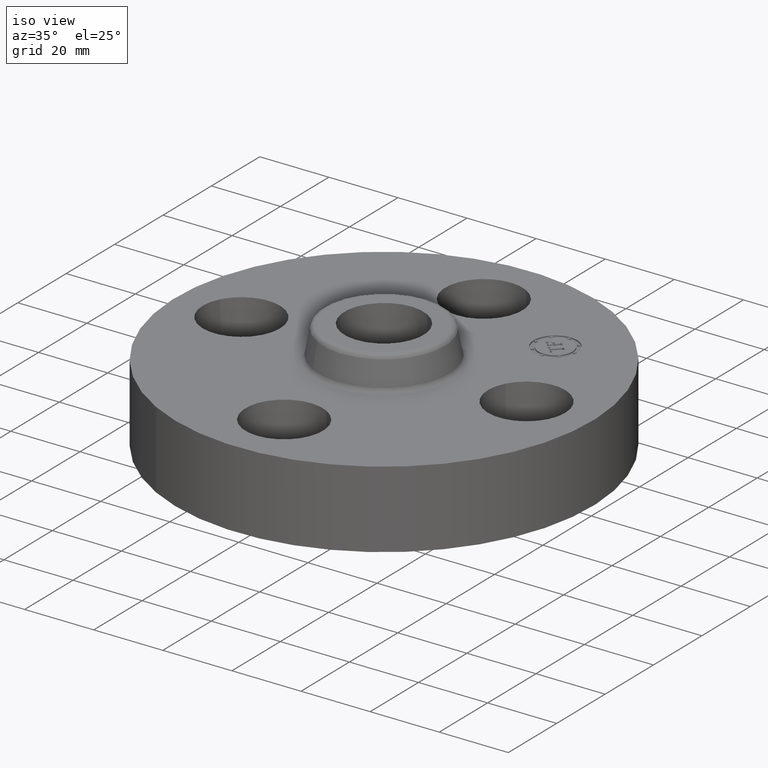
[diagram: clean part render]
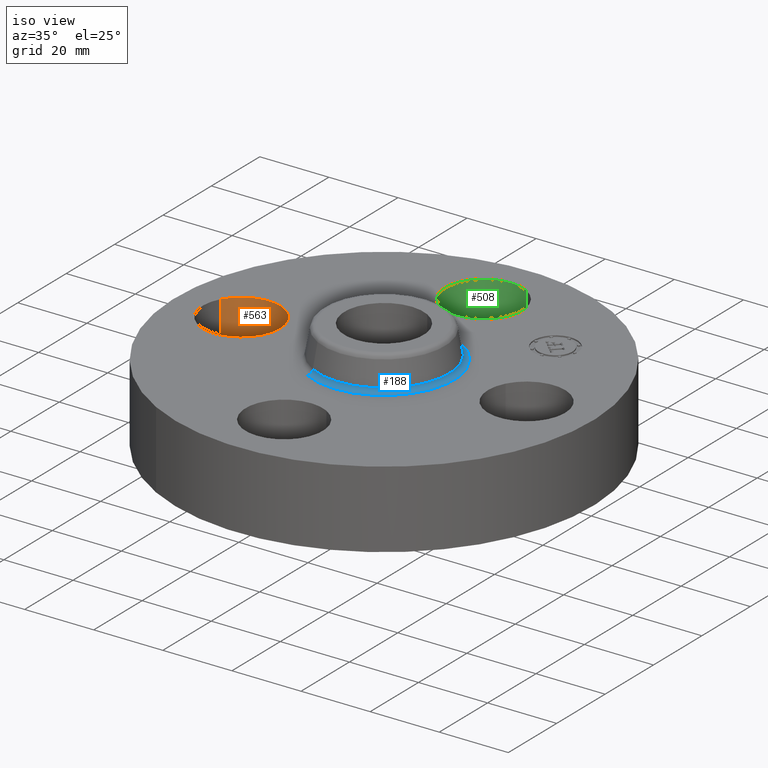
[diagram: same view with three faces highlighted in distinct colors, each labeled with its STEP entity id]
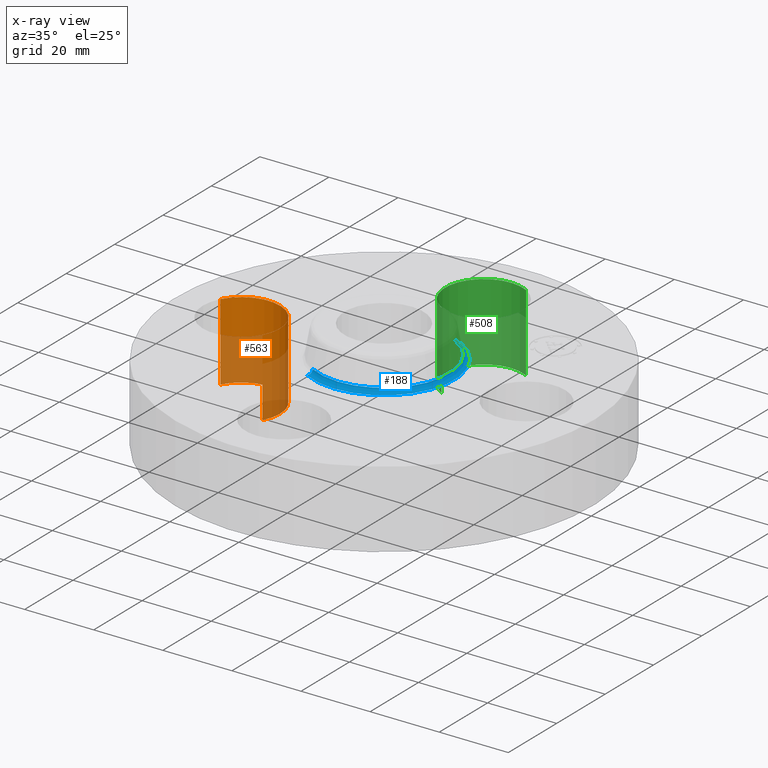
[diagram: x-ray of the same camera — body ghosted, the three highlighted faces saturated]
A machine part, iso view with three faces highlighted in distinct colors.
The next image is the same camera in x-ray (body ghosted, the three faces saturated) — at least one of them is partly hidden behind the body in this view.
Their STEP definitions:

[orange] entity #563 — the highlighted cylindrical surface (partial cylindrical patch) has radius 11.176 mm, axis along (-0, 0, -1).
#452=AXIS2_PLACEMENT_3D('Circle Axis2P3D',#450,#451,$) ;
#524=AXIS2_PLACEMENT_3D('Cylinder Axis2P3D',#521,#522,#523) ;
#554=AXIS2_PLACEMENT_3D('Circle Axis2P3D',#552,#553,$) ;
#445=CARTESIAN_POINT('Vertex',(-1.23886367277,-0.210947236987,0.)) ;
#447=CARTESIAN_POINT('Vertex',(-2.01113632724,0.210947236987,0.)) ;
#450=CARTESIAN_POINT('Axis2P3D Location',(-1.62500000001,-2.09805925913E-016,0.)) ;
#521=CARTESIAN_POINT('Axis2P3D Location',(-1.62500000001,-1.99005104862E-016,0.87606299213)) ;
#526=CARTESIAN_POINT('Line Origine',(-1.23886367277,-0.210947236987,0.440000000002)) ;
#530=CARTESIAN_POINT('Vertex',(-1.23886367277,-0.210947236987,0.880000000004)) ;
#533=CARTESIAN_POINT('Line Origine',(-2.01113632724,0.210947236987,0.440000000002)) ;
#537=CARTESIAN_POINT('Vertex',(-2.01113632724,0.210947236987,0.880000000004)) ;
#552=CARTESIAN_POINT('Axis2P3D Location',(-1.62500000001,-1.99005104862E-016,0.880000000004)) ;
#451=DIRECTION('Axis2P3D Direction',(0.,0.,-0.0393700787402)) ;
#522=DIRECTION('Axis2P3D Direction',(-0.,0.,-0.0393700787402)) ;
#523=DIRECTION('Axis2P3D XDirection',(-0.0345504945626,0.0188750212049,0.)) ;
#527=DIRECTION('Vector Direction',(0.,0.,-0.0393700787402)) ;
#534=DIRECTION('Vector Direction',(0.,0.,-0.0393700787402)) ;
#553=DIRECTION('Axis2P3D Direction',(-0.,0.,-0.0393700787402)) ;
#528=VECTOR('Line Direction',#527,0.0393700787402) ;
#535=VECTOR('Line Direction',#534,0.0393700787402) ;
#558=ORIENTED_EDGE('',*,*,#539,.F.) ;
#559=ORIENTED_EDGE('',*,*,#454,.T.) ;
#560=ORIENTED_EDGE('',*,*,#532,.T.) ;
#561=ORIENTED_EDGE('',*,*,#556,.F.) ;
#563=ADVANCED_FACE('PartBody',(#562),#525,.F.) ;
#453=CIRCLE('generated circle',#452,0.440000000002) ;
#555=CIRCLE('generated circle',#554,0.440000000002) ;
#525=CYLINDRICAL_SURFACE('generated cylinder',#524,0.440000000002) ;
#454=EDGE_CURVE('',#448,#446,#453,.T.) ;
#532=EDGE_CURVE('',#446,#531,#529,.F.) ;
#539=EDGE_CURVE('',#448,#538,#536,.F.) ;
#556=EDGE_CURVE('',#538,#531,#555,.T.) ;
#557=EDGE_LOOP('',(#558,#559,#560,#561)) ;
#562=FACE_OUTER_BOUND('',#557,.T.) ;
#529=LINE('Line',#526,#528) ;
#536=LINE('Line',#533,#535) ;
#446=VERTEX_POINT('',#445) ;
#448=VERTEX_POINT('',#447) ;
#531=VERTEX_POINT('',#530) ;
#538=VERTEX_POINT('',#537) ;

[blue] entity #188 — the highlighted toroidal blend (fillet) surface has major radius 20.3288 mm and minor (blend) radius 1.524 mm.
#152=AXIS2_PLACEMENT_3D('Torus Axis2P3D',#149,#150,#151) ;
#156=AXIS2_PLACEMENT_3D('Circle Axis2P3D',#154,#155,$) ;
#165=AXIS2_PLACEMENT_3D('Circle Axis2P3D',#163,#164,$) ;
#172=AXIS2_PLACEMENT_3D('Circle Axis2P3D',#170,#171,$) ;
#179=AXIS2_PLACEMENT_3D('Circle Axis2P3D',#177,#178,$) ;
#149=CARTESIAN_POINT('Axis2P3D Location',(0.,0.,0.940000000004)) ;
#154=CARTESIAN_POINT('Axis2P3D Location',(0.,0.,0.880000000004)) ;
#158=CARTESIAN_POINT('Vertex',(0.383706301512,0.702369673661,0.880000000004)) ;
#160=CARTESIAN_POINT('Vertex',(-0.383706301512,-0.702369673661,0.880000000004)) ;
#163=CARTESIAN_POINT('Axis2P3D Location',(0.383706301512,0.702369673661,0.940000000004)) ;
#167=CARTESIAN_POINT('Vertex',(0.355377782267,0.650514667009,0.929581109344)) ;
#170=CARTESIAN_POINT('Axis2P3D Location',(0.,0.,0.929581109344)) ;
#174=CARTESIAN_POINT('Vertex',(-0.355377782267,-0.650514667009,0.929581109344)) ;
#177=CARTESIAN_POINT('Axis2P3D Location',(-0.383706301512,-0.702369673661,0.940000000004)) ;
#150=DIRECTION('Axis2P3D Direction',(0.,0.,-0.0393700787402)) ;
#151=DIRECTION('Axis2P3D XDirection',(-0.0188750212049,-0.0345504945626,0.)) ;
#155=DIRECTION('Axis2P3D Direction',(0.,0.,-0.0393700787402)) ;
#164=DIRECTION('Axis2P3D Direction',(-0.0345504945626,0.0188750212049,0.)) ;
#171=DIRECTION('Axis2P3D Direction',(0.,0.,-0.0393700787402)) ;
#178=DIRECTION('Axis2P3D Direction',(0.0345504945626,-0.0188750212049,0.)) ;
#183=ORIENTED_EDGE('',*,*,#162,.F.) ;
#184=ORIENTED_EDGE('',*,*,#169,.T.) ;
#185=ORIENTED_EDGE('',*,*,#176,.T.) ;
#186=ORIENTED_EDGE('',*,*,#181,.F.) ;
#188=ADVANCED_FACE('PartBody',(#187),#153,.F.) ;
#157=CIRCLE('generated circle',#156,0.800345977874) ;
#166=CIRCLE('generated circle',#165,0.0600000000002) ;
#173=CIRCLE('generated circle',#172,0.741257512693) ;
#180=CIRCLE('generated circle',#179,0.0600000000002) ;
#153=TOROIDAL_SURFACE('homeo Torus',#152,0.800345977874,0.0600000000002) ;
#162=EDGE_CURVE('',#159,#161,#157,.T.) ;
#169=EDGE_CURVE('',#159,#168,#166,.T.) ;
#176=EDGE_CURVE('',#168,#175,#173,.T.) ;
#181=EDGE_CURVE('',#161,#175,#180,.T.) ;
#182=EDGE_LOOP('',(#183,#184,#185,#186)) ;
#187=FACE_OUTER_BOUND('',#182,.T.) ;
#159=VERTEX_POINT('',#158) ;
#161=VERTEX_POINT('',#160) ;
#168=VERTEX_POINT('',#167) ;
#175=VERTEX_POINT('',#174) ;

[green] entity #508 — the highlighted cylindrical surface (partial cylindrical patch) has radius 11.176 mm, axis along (0, 0, -1).
#461=AXIS2_PLACEMENT_3D('Circle Axis2P3D',#459,#460,$) ;
#481=AXIS2_PLACEMENT_3D('Cylinder Axis2P3D',#478,#479,#480) ;
#499=AXIS2_PLACEMENT_3D('Circle Axis2P3D',#497,#498,$) ;
#459=CARTESIAN_POINT('Axis2P3D Location',(-3.49676543189E-016,1.62500000001,0.)) ;
#463=CARTESIAN_POINT('Vertex',(-0.210947236987,1.23886367277,0.)) ;
#465=CARTESIAN_POINT('Vertex',(0.210947236987,2.01113632724,0.)) ;
#478=CARTESIAN_POINT('Axis2P3D Location',(-2.98507657293E-016,1.62500000001,0.87606299213)) ;
#483=CARTESIAN_POINT('Line Origine',(-0.210947236987,1.23886367277,0.440000000002)) ;
#487=CARTESIAN_POINT('Vertex',(-0.210947236987,1.23886367277,0.880000000004)) ;
#490=CARTESIAN_POINT('Line Origine',(0.210947236987,2.01113632724,0.440000000002)) ;
#494=CARTESIAN_POINT('Vertex',(0.210947236987,2.01113632724,0.880000000004)) ;
#497=CARTESIAN_POINT('Axis2P3D Location',(-2.98507657293E-016,1.62500000001,0.880000000004)) ;
#460=DIRECTION('Axis2P3D Direction',(0.,0.,-0.0393700787402)) ;
#479=DIRECTION('Axis2P3D Direction',(0.,0.,-0.0393700787402)) ;
#480=DIRECTION('Axis2P3D XDirection',(0.0188750212049,0.0345504945626,0.)) ;
#484=DIRECTION('Vector Direction',(0.,0.,-0.0393700787402)) ;
#491=DIRECTION('Vector Direction',(0.,0.,-0.0393700787402)) ;
#498=DIRECTION('Axis2P3D Direction',(0.,0.,-0.0393700787402)) ;
#485=VECTOR('Line Direction',#484,0.0393700787402) ;
#492=VECTOR('Line Direction',#491,0.0393700787402) ;
#503=ORIENTED_EDGE('',*,*,#489,.F.) ;
#504=ORIENTED_EDGE('',*,*,#467,.T.) ;
#505=ORIENTED_EDGE('',*,*,#496,.T.) ;
#506=ORIENTED_EDGE('',*,*,#501,.F.) ;
#508=ADVANCED_FACE('PartBody',(#507),#482,.F.) ;
#462=CIRCLE('generated circle',#461,0.440000000002) ;
#500=CIRCLE('generated circle',#499,0.440000000002) ;
#482=CYLINDRICAL_SURFACE('generated cylinder',#481,0.440000000002) ;
#467=EDGE_CURVE('',#464,#466,#462,.T.) ;
#489=EDGE_CURVE('',#464,#488,#486,.F.) ;
#496=EDGE_CURVE('',#466,#495,#493,.F.) ;
#501=EDGE_CURVE('',#488,#495,#500,.T.) ;
#502=EDGE_LOOP('',(#503,#504,#505,#506)) ;
#507=FACE_OUTER_BOUND('',#502,.T.) ;
#486=LINE('Line',#483,#485) ;
#493=LINE('Line',#490,#492) ;
#464=VERTEX_POINT('',#463) ;
#466=VERTEX_POINT('',#465) ;
#488=VERTEX_POINT('',#487) ;
#495=VERTEX_POINT('',#494) ;